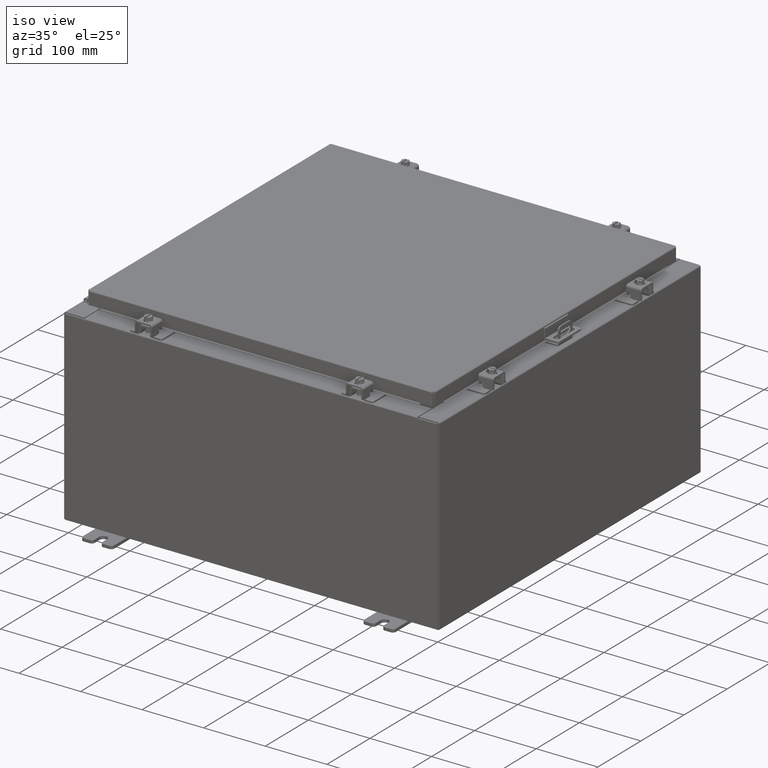
[diagram: clean part render]
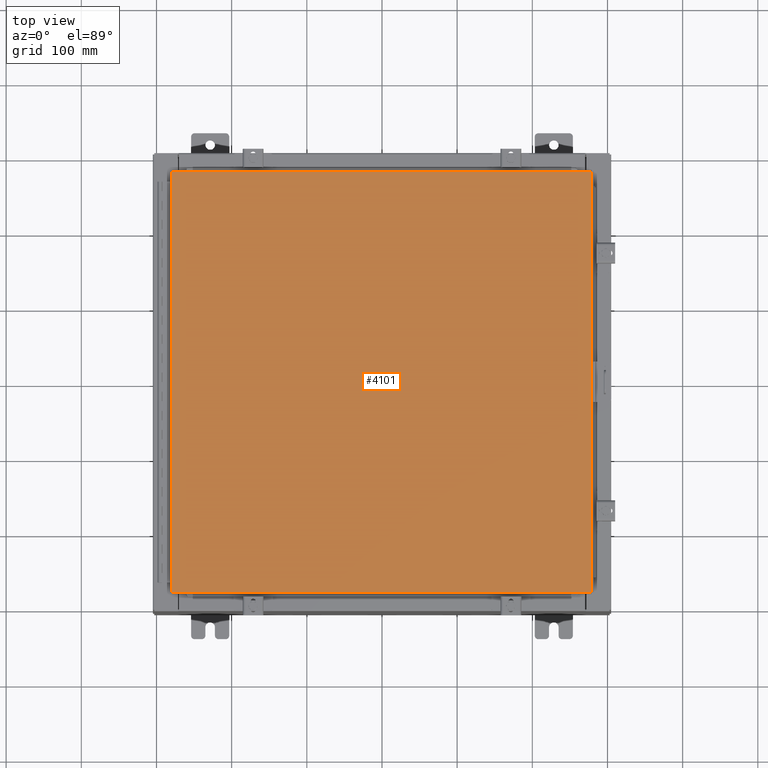
[diagram: tour spotlight — one face highlighted and labeled with its STEP entity id]
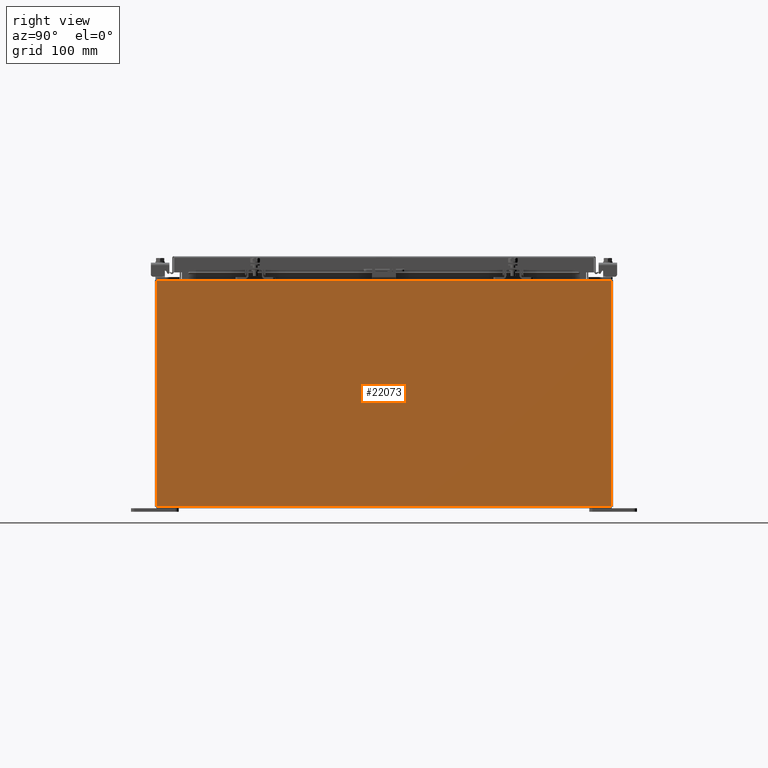
[diagram: tour spotlight — one face highlighted and labeled with its STEP entity id]
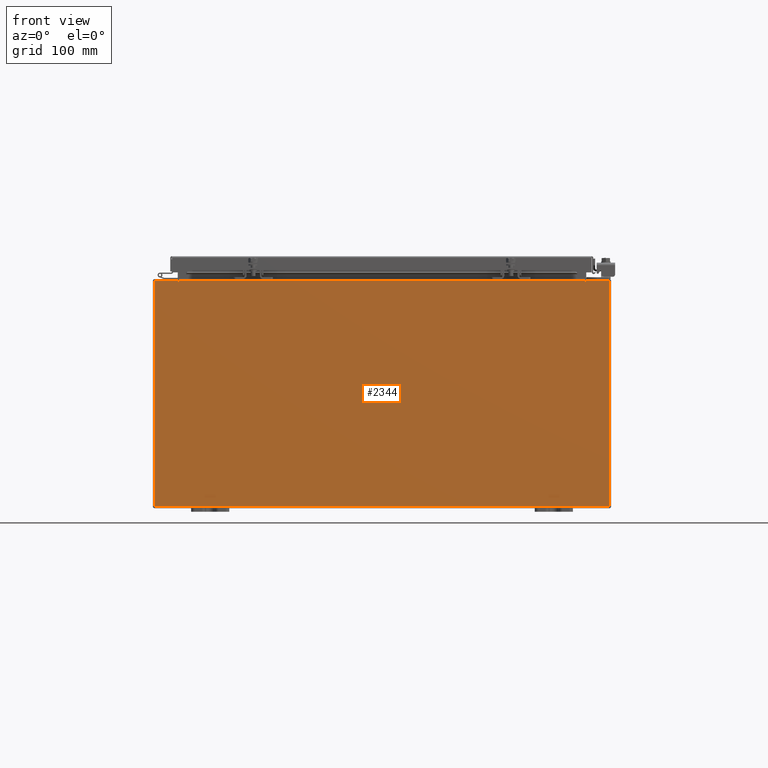
[diagram: tour spotlight — one face highlighted and labeled with its STEP entity id]
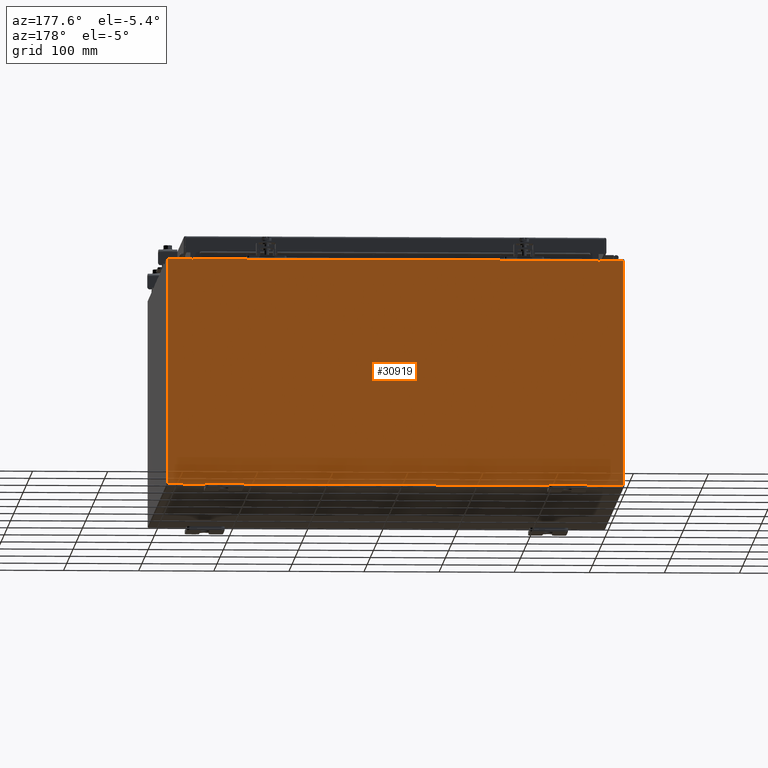
[diagram: tour spotlight — one face highlighted and labeled with its STEP entity id]
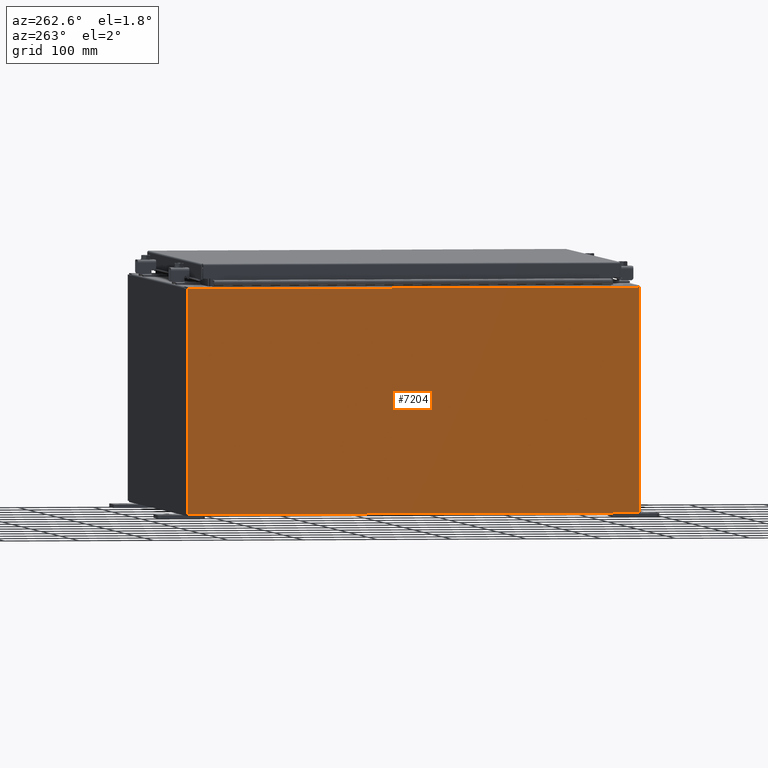
[diagram: tour spotlight — one face highlighted and labeled with its STEP entity id]
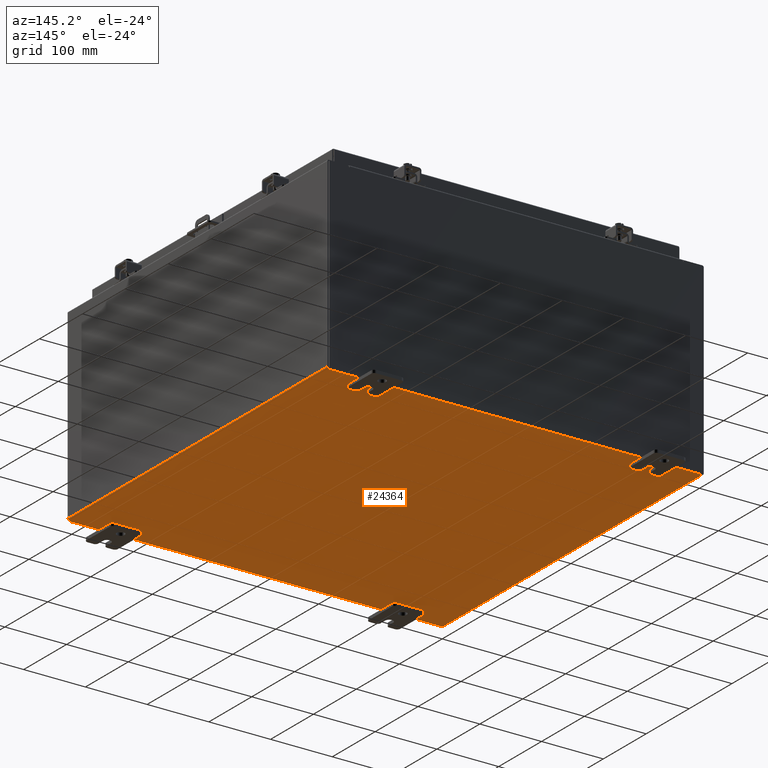
[diagram: tour spotlight — one face highlighted and labeled with its STEP entity id]
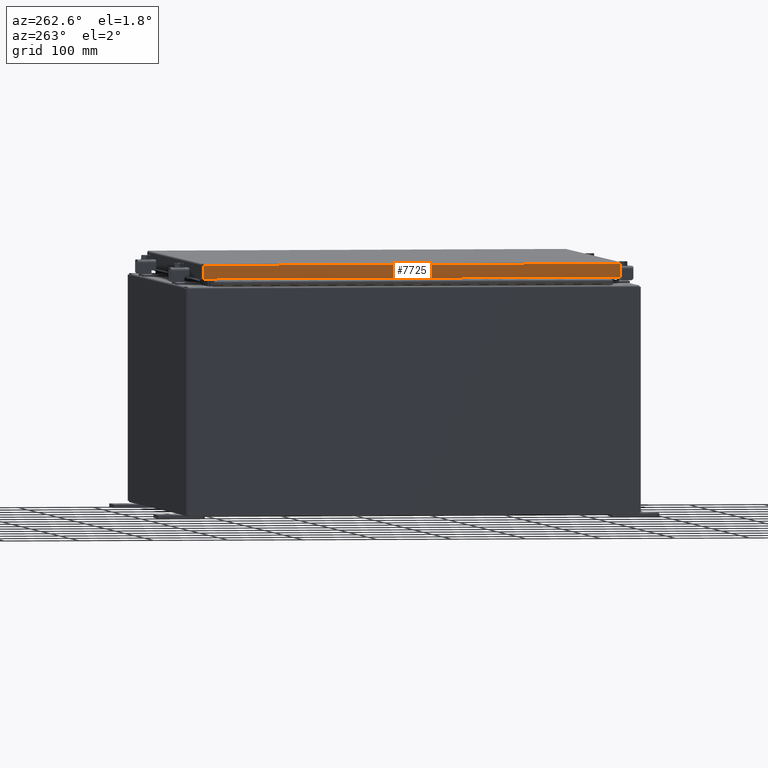
[diagram: tour spotlight — one face highlighted and labeled with its STEP entity id]
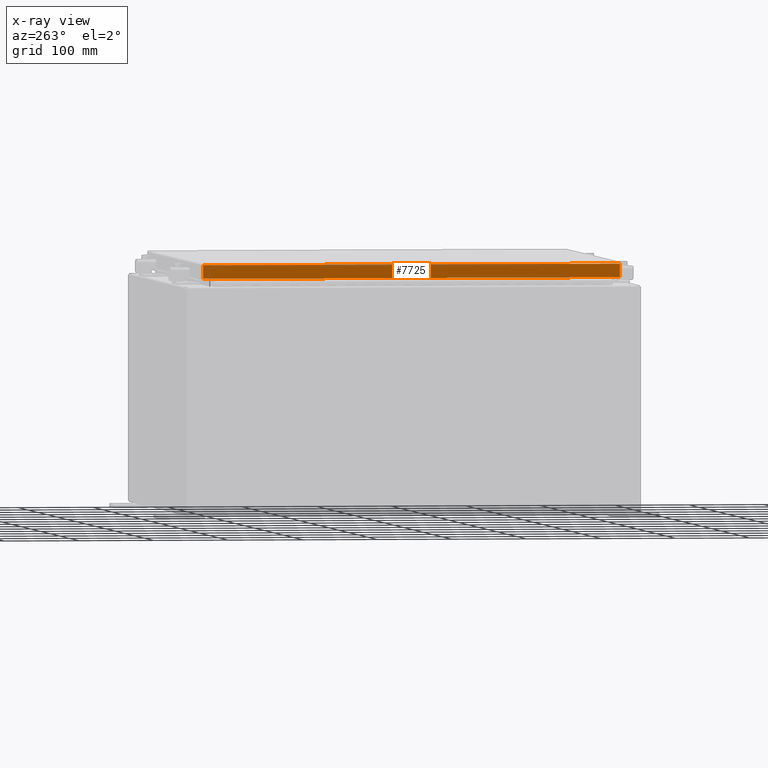
[diagram: x-ray of the same camera — body ghosted, this tour face saturated]
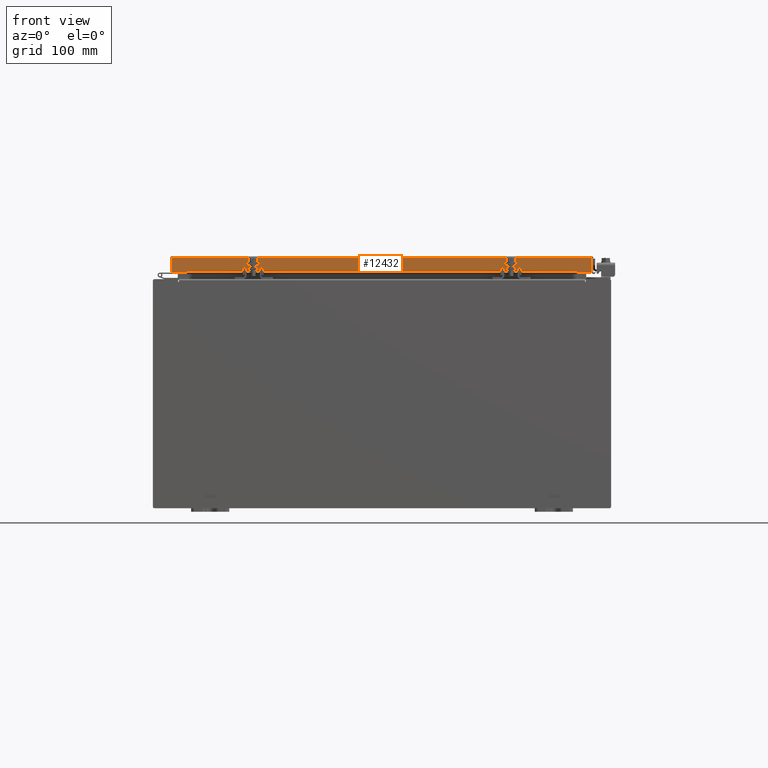
[diagram: tour spotlight — one face highlighted and labeled with its STEP entity id]
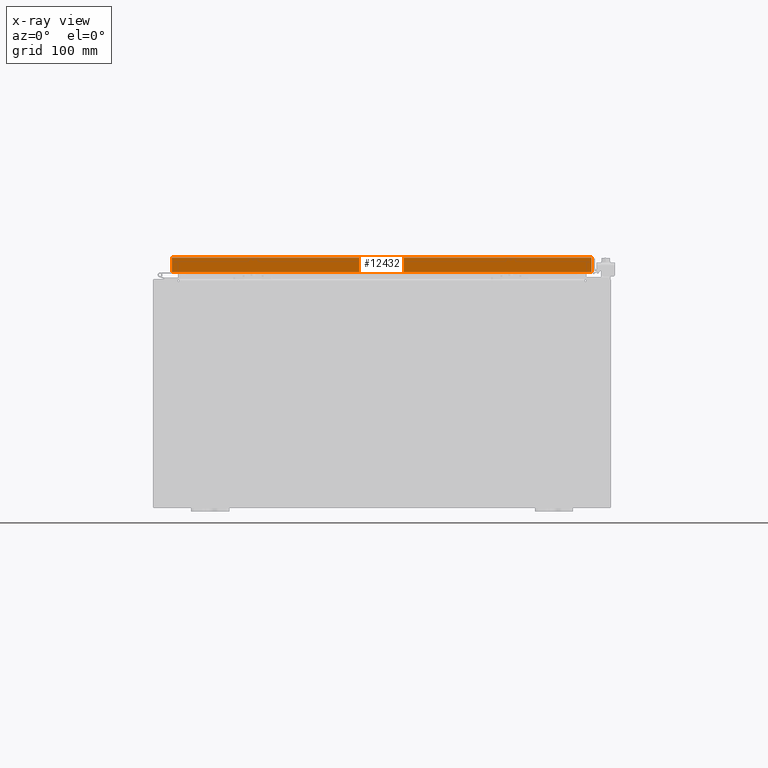
[diagram: x-ray of the same camera — body ghosted, this tour face saturated]
A machine part: a face-by-face anatomy tour. The part has 1709 B-rep faces; the first image is the clean iso view, then the 8 largest visible faces are spotlighted one at a time (largest first), each with its STEP entity span.

Face 1 — top view, entity #4101. In plain terms, the highlighted planar face has unit normal (0, 0, -1).
Definition (entity closure, byte-faithful):
#2749 = ORIENTED_EDGE ( 'NONE', *, *, #5644, .T. ) ;
#4101 = ADVANCED_FACE ( 'NONE', ( #16332 ), #6363, .F. ) ;
#5162 = CARTESIAN_POINT ( 'NONE',  ( 10.99029999999999800, 11.00629999999999600, -2.048885995248197400E-016 ) ) ;
#5644 = EDGE_CURVE ( 'NONE', #21532, #18365, #6133, .T. ) ;
#6133 = LINE ( 'NONE', #19002, #12801 ) ;
#6226 = AXIS2_PLACEMENT_3D ( 'NONE', #17024, #24381, #15376 ) ;
#6363 = PLANE ( 'NONE',  #6226 ) ;
#6663 = CARTESIAN_POINT ( 'NONE',  ( -10.99030000000000000, -11.00630000000000100, 8.878505979408856000E-016 ) ) ;
#8010 = DIRECTION ( 'NONE',  ( 0.0000000000000000000, -1.000000000000000000, 0.0000000000000000000 ) ) ;
#8567 = VECTOR ( 'NONE', #15763, 39.37007874015748100 ) ;
#8629 = ORIENTED_EDGE ( 'NONE', *, *, #20562, .T. ) ;
#11297 = LINE ( 'NONE', #5162, #17097 ) ;
#11789 = VERTEX_POINT ( 'NONE', #30143 ) ;
#11871 = VERTEX_POINT ( 'NONE', #28518 ) ;
#12105 = EDGE_CURVE ( 'NONE', #11789, #11871, #21863, .T. ) ;
#12801 = VECTOR ( 'NONE', #8010, 39.37007874015748100 ) ;
#15282 = VECTOR ( 'NONE', #15597, 39.37007874015748100 ) ;
#15376 = DIRECTION ( 'NONE',  ( -1.000000000000000000, 0.0000000000000000000, -0.0000000000000000000 ) ) ;
#15597 = DIRECTION ( 'NONE',  ( 1.000000000000000000, -0.0000000000000000000, -0.0000000000000000000 ) ) ;
#15763 = DIRECTION ( 'NONE',  ( 0.0000000000000000000, 1.000000000000000000, 0.0000000000000000000 ) ) ;
#16327 = ORIENTED_EDGE ( 'NONE', *, *, #28066, .T. ) ;
#16332 = FACE_OUTER_BOUND ( 'NONE', #16879, .T. ) ;
#16879 = EDGE_LOOP ( 'NONE', ( #8629, #31838, #16327, #2749 ) ) ;
#17024 = CARTESIAN_POINT ( 'NONE',  ( 0.0000000000000000000, 0.0000000000000000000, 0.0000000000000000000 ) ) ;
#17097 = VECTOR ( 'NONE', #20096, 39.37007874015748100 ) ;
#18365 = VERTEX_POINT ( 'NONE', #6663 ) ;
#19002 = CARTESIAN_POINT ( 'NONE',  ( -10.99030000000000500, 11.00629999999999600, -1.348849946871729900E-015 ) ) ;
#20096 = DIRECTION ( 'NONE',  ( -1.000000000000000000, -0.0000000000000000000, -0.0000000000000000000 ) ) ;
#20562 = EDGE_CURVE ( 'NONE', #18365, #11789, #21928, .T. ) ;
#20796 = CARTESIAN_POINT ( 'NONE',  ( 10.99029999999999600, -11.00630000000000100, -2.048885995248197400E-016 ) ) ;
#21532 = VERTEX_POINT ( 'NONE', #22006 ) ;
#21863 = LINE ( 'NONE', #20796, #8567 ) ;
#21928 = LINE ( 'NONE', #25412, #15282 ) ;
#22006 = CARTESIAN_POINT ( 'NONE',  ( -10.99030000000000500, 11.00629999999999600, -1.348849946871729900E-015 ) ) ;
#24381 = DIRECTION ( 'NONE',  ( 0.0000000000000000000, 0.0000000000000000000, -1.000000000000000000 ) ) ;
#25412 = CARTESIAN_POINT ( 'NONE',  ( -10.99030000000000000, -11.00630000000000100, 8.878505979408856000E-016 ) ) ;
#28066 = EDGE_CURVE ( 'NONE', #11871, #21532, #11297, .T. ) ;
#28518 = CARTESIAN_POINT ( 'NONE',  ( 10.99029999999999800, 11.00629999999999600, -2.048885995248197400E-016 ) ) ;
#30143 = CARTESIAN_POINT ( 'NONE',  ( 10.99029999999999600, -11.00630000000000100, -2.048885995248197400E-016 ) ) ;
#31838 = ORIENTED_EDGE ( 'NONE', *, *, #12105, .T. ) ;

Face 2 — right view, entity #22073. In plain terms, the highlighted planar face has unit normal (-1, 0, 0).
Definition (entity closure, byte-faithful):
#1579 = DIRECTION ( 'NONE',  ( -3.482016343714355500E-015, 0.0000000000000000000, -1.000000000000000000 ) ) ;
#4362 = VECTOR ( 'NONE', #10291, 39.37007874015748100 ) ;
#4567 = VERTEX_POINT ( 'NONE', #10391 ) ;
#4844 = DIRECTION ( 'NONE',  ( -1.000000000000000000, 0.0000000000000000000, 3.482016343714355100E-015 ) ) ;
#5555 = CARTESIAN_POINT ( 'NONE',  ( 11.99999999999999800, -11.92530000000000400, 0.01299999999999984700 ) ) ;
#6323 = VECTOR ( 'NONE', #1579, 39.37007874015748100 ) ;
#6795 = DIRECTION ( 'NONE',  ( -0.0000000000000000000, -1.000000000000000000, -0.0000000000000000000 ) ) ;
#8325 = LINE ( 'NONE', #13080, #26651 ) ;
#8662 = ORIENTED_EDGE ( 'NONE', *, *, #32009, .T. ) ;
#9198 = EDGE_CURVE ( 'NONE', #4567, #14258, #30127, .T. ) ;
#10291 = DIRECTION ( 'NONE',  ( -0.0000000000000000000, -1.000000000000000000, -0.0000000000000000000 ) ) ;
#10391 = CARTESIAN_POINT ( 'NONE',  ( 12.00000000000004100, 11.92529999999999600, 11.83760000000000000 ) ) ;
#11923 = ORIENTED_EDGE ( 'NONE', *, *, #9198, .T. ) ;
#12856 = VECTOR ( 'NONE', #31084, 39.37007874015748100 ) ;
#12996 = LINE ( 'NONE', #19102, #6323 ) ;
#13080 = CARTESIAN_POINT ( 'NONE',  ( 11.99999999999999800, -11.92530000000000400, 0.01299999999999984700 ) ) ;
#13785 = EDGE_CURVE ( 'NONE', #15747, #4567, #26056, .T. ) ;
#14258 = VERTEX_POINT ( 'NONE', #23986 ) ;
#14822 = CARTESIAN_POINT ( 'NONE',  ( 11.99999999999999800, 11.92529999999999600, 0.01299999999999984700 ) ) ;
#15747 = VERTEX_POINT ( 'NONE', #14822 ) ;
#15951 = ORIENTED_EDGE ( 'NONE', *, *, #19487, .F. ) ;
#18460 = VERTEX_POINT ( 'NONE', #5555 ) ;
#19102 = CARTESIAN_POINT ( 'NONE',  ( 11.99999999999999800, -11.92530000000000400, -4.204500978058384000E-014 ) ) ;
#19475 = ORIENTED_EDGE ( 'NONE', *, *, #13785, .T. ) ;
#19487 = EDGE_CURVE ( 'NONE', #15747, #18460, #8325, .T. ) ;
#19774 = CARTESIAN_POINT ( 'NONE',  ( 11.99999999999999800, 0.0000000000000000000, -4.204500978058384000E-014 ) ) ;
#21159 = EDGE_LOOP ( 'NONE', ( #11923, #8662, #15951, #19475 ) ) ;
#22073 = ADVANCED_FACE ( 'NONE', ( #29610 ), #24688, .F. ) ;
#22309 = DIRECTION ( 'NONE',  ( 3.482016343714355100E-015, 0.0000000000000000000, 1.000000000000000000 ) ) ;
#23986 = CARTESIAN_POINT ( 'NONE',  ( 12.00000000000004100, -11.92530000000000400, 11.83760000000000000 ) ) ;
#24688 = PLANE ( 'NONE',  #32336 ) ;
#25271 = CARTESIAN_POINT ( 'NONE',  ( 12.00000000000004100, 11.92529999999999800, 11.83760000000000000 ) ) ;
#26056 = LINE ( 'NONE', #29591, #12856 ) ;
#26651 = VECTOR ( 'NONE', #6795, 39.37007874015748100 ) ;
#29591 = CARTESIAN_POINT ( 'NONE',  ( 11.99999999999999800, 11.92529999999999800, -3.985953138565242700E-014 ) ) ;
#29610 = FACE_OUTER_BOUND ( 'NONE', #21159, .T. ) ;
#30127 = LINE ( 'NONE', #25271, #4362 ) ;
#31084 = DIRECTION ( 'NONE',  ( 3.482016343714355500E-015, -1.832640180902292400E-016, 1.000000000000000000 ) ) ;
#32009 = EDGE_CURVE ( 'NONE', #14258, #18460, #12996, .T. ) ;
#32336 = AXIS2_PLACEMENT_3D ( 'NONE', #19774, #4844, #22309 ) ;

Face 3 — front view, entity #2344. In plain terms, the highlighted planar face has unit normal (-0, 1, -0).
Definition (entity closure, byte-faithful):
#123 = EDGE_CURVE ( 'NONE', #12515, #16957, #15056, .T. ) ;
#334 = LINE ( 'NONE', #498, #26151 ) ;
#468 = EDGE_CURVE ( 'NONE', #3022, #19372, #25549, .T. ) ;
#498 = CARTESIAN_POINT ( 'NONE',  ( 10.63720000000000400, 0.0000000000000000000, 0.0000000000000000000 ) ) ;
#983 = CARTESIAN_POINT ( 'NONE',  ( 10.63720000000000400, 0.0000000000000000000, 5.912300000000001000 ) ) ;
#1003 = LINE ( 'NONE', #17202, #19418 ) ;
#1527 = VERTEX_POINT ( 'NONE', #8204 ) ;
#1715 = PLANE ( 'NONE',  #22298 ) ;
#2262 = DIRECTION ( 'NONE',  ( 0.0000000000000000000, 0.0000000000000000000, -1.000000000000000000 ) ) ;
#2344 = ADVANCED_FACE ( 'NONE', ( #21150 ), #1715, .F. ) ;
#2394 = VERTEX_POINT ( 'NONE', #26447 ) ;
#2830 = CARTESIAN_POINT ( 'NONE',  ( -11.92530000000000000, 0.0000000000000000000, 5.925300000000000000 ) ) ;
#2891 = EDGE_CURVE ( 'NONE', #19372, #16957, #334, .T. ) ;
#3022 = VERTEX_POINT ( 'NONE', #13255 ) ;
#3382 = VECTOR ( 'NONE', #27436, 39.37007874015748100 ) ;
#3418 = VERTEX_POINT ( 'NONE', #12728 ) ;
#3546 = DIRECTION ( 'NONE',  ( -1.000000000000000000, -0.0000000000000000000, -0.0000000000000000000 ) ) ;
#3864 = VECTOR ( 'NONE', #11625, 39.37007874015748100 ) ;
#4028 = VERTEX_POINT ( 'NONE', #27704 ) ;
#4132 = EDGE_CURVE ( 'NONE', #3418, #23261, #22242, .T. ) ;
#4544 = CARTESIAN_POINT ( 'NONE',  ( -11.92530000000000000, 0.0000000000000000000, 5.925300000000000000 ) ) ;
#4637 = DIRECTION ( 'NONE',  ( 0.0000000000000000000, 0.0000000000000000000, -1.000000000000000000 ) ) ;
#4768 = DIRECTION ( 'NONE',  ( 0.0000000000000000000, 0.0000000000000000000, -1.000000000000000000 ) ) ;
#4825 = ORIENTED_EDGE ( 'NONE', *, *, #22071, .T. ) ;
#4891 = EDGE_CURVE ( 'NONE', #18852, #2394, #25660, .T. ) ;
#5991 = ORIENTED_EDGE ( 'NONE', *, *, #2891, .F. ) ;
#6051 = AXIS2_PLACEMENT_3D ( 'NONE', #16630, #32163, #4637 ) ;
#6829 = EDGE_CURVE ( 'NONE', #4028, #12113, #19711, .T. ) ;
#8204 = CARTESIAN_POINT ( 'NONE',  ( 10.67455000000000200, 0.0000000000000000000, 5.925300000000001800 ) ) ;
#8283 = EDGE_CURVE ( 'NONE', #22448, #4028, #24677, .T. ) ;
#8401 = ORIENTED_EDGE ( 'NONE', *, *, #29397, .F. ) ;
#8433 = DIRECTION ( 'NONE',  ( 0.0000000000000000000, 0.0000000000000000000, -1.000000000000000000 ) ) ;
#8492 = DIRECTION ( 'NONE',  ( -0.0000000000000000000, 1.000000000000000000, -0.0000000000000000000 ) ) ;
#8524 = CARTESIAN_POINT ( 'NONE',  ( 10.65587500000000200, 0.0000000000000000000, 5.874950000000001000 ) ) ;
#8964 = CARTESIAN_POINT ( 'NONE',  ( -11.92530000000000000, 0.0000000000000000000, -5.925299999999999100 ) ) ;
#9557 = DIRECTION ( 'NONE',  ( -0.0000000000000000000, -0.0000000000000000000, 1.000000000000000000 ) ) ;
#10520 = VECTOR ( 'NONE', #17241, 39.37007874015748100 ) ;
#11206 = EDGE_LOOP ( 'NONE', ( #8401, #24494, #29262, #20943, #5991, #25058, #17583, #4825, #11525, #11651, #16362, #11444 ) ) ;
#11436 = VECTOR ( 'NONE', #4768, 39.37007874015748100 ) ;
#11444 = ORIENTED_EDGE ( 'NONE', *, *, #4132, .T. ) ;
#11480 = EDGE_CURVE ( 'NONE', #1527, #3022, #18374, .T. ) ;
#11525 = ORIENTED_EDGE ( 'NONE', *, *, #8283, .T. ) ;
#11625 = DIRECTION ( 'NONE',  ( 1.000000000000000000, 0.0000000000000000000, 4.581600452255731000E-017 ) ) ;
#11651 = ORIENTED_EDGE ( 'NONE', *, *, #6829, .T. ) ;
#12113 = VERTEX_POINT ( 'NONE', #8964 ) ;
#12515 = VERTEX_POINT ( 'NONE', #22060 ) ;
#12728 = CARTESIAN_POINT ( 'NONE',  ( -11.92530000000000000, 0.0000000000000000000, 5.925300000000000000 ) ) ;
#13255 = CARTESIAN_POINT ( 'NONE',  ( 10.67455000000000200, 0.0000000000000000000, 5.874950000000001000 ) ) ;
#13521 = CARTESIAN_POINT ( 'NONE',  ( -10.67455000000000200, 0.0000000000000000000, 5.925300000000000000 ) ) ;
#14546 = CARTESIAN_POINT ( 'NONE',  ( 10.63720000000000400, 0.0000000000000000000, 5.874950000000001000 ) ) ;
#14756 = CARTESIAN_POINT ( 'NONE',  ( -11.92530000000000000, 0.0000000000000000000, 5.925300000000000000 ) ) ;
#15056 = LINE ( 'NONE', #25312, #27535 ) ;
#15311 = AXIS2_PLACEMENT_3D ( 'NONE', #8524, #8492, #8433 ) ;
#16277 = CARTESIAN_POINT ( 'NONE',  ( -10.63720000000000400, -0.0000000000000000000, 5.874950000000001000 ) ) ;
#16362 = ORIENTED_EDGE ( 'NONE', *, *, #21542, .T. ) ;
#16630 = CARTESIAN_POINT ( 'NONE',  ( -10.65587500000000200, 0.0000000000000000000, 5.874950000000001000 ) ) ;
#16957 = VERTEX_POINT ( 'NONE', #983 ) ;
#17202 = CARTESIAN_POINT ( 'NONE',  ( -10.63720000000000400, -0.0000000000000000000, 0.0000000000000000000 ) ) ;
#17241 = DIRECTION ( 'NONE',  ( 1.000000000000000000, 0.0000000000000000000, 4.581600452255731000E-017 ) ) ;
#17583 = ORIENTED_EDGE ( 'NONE', *, *, #11480, .F. ) ;
#18374 = LINE ( 'NONE', #25436, #30875 ) ;
#18611 = CARTESIAN_POINT ( 'NONE',  ( -11.92530000000000000, 0.0000000000000000000, -5.925299999999999100 ) ) ;
#18852 = VERTEX_POINT ( 'NONE', #16277 ) ;
#19372 = VERTEX_POINT ( 'NONE', #14546 ) ;
#19418 = VECTOR ( 'NONE', #2262, 39.37007874015748100 ) ;
#19711 = LINE ( 'NONE', #18611, #31400 ) ;
#20943 = ORIENTED_EDGE ( 'NONE', *, *, #123, .T. ) ;
#21150 = FACE_OUTER_BOUND ( 'NONE', #11206, .T. ) ;
#21542 = EDGE_CURVE ( 'NONE', #12113, #3418, #32019, .T. ) ;
#22060 = CARTESIAN_POINT ( 'NONE',  ( -10.63720000000000400, -1.707404996040164500E-016, 5.912300000000001000 ) ) ;
#22071 = EDGE_CURVE ( 'NONE', #1527, #22448, #30393, .T. ) ;
#22242 = LINE ( 'NONE', #2830, #3864 ) ;
#22298 = AXIS2_PLACEMENT_3D ( 'NONE', #26348, #25711, #25754 ) ;
#22448 = VERTEX_POINT ( 'NONE', #25411 ) ;
#22508 = CARTESIAN_POINT ( 'NONE',  ( 11.92530000000000000, 0.0000000000000000000, 5.925300000000001800 ) ) ;
#22918 = EDGE_CURVE ( 'NONE', #12515, #18852, #1003, .T. ) ;
#23261 = VERTEX_POINT ( 'NONE', #13521 ) ;
#24494 = ORIENTED_EDGE ( 'NONE', *, *, #4891, .F. ) ;
#24677 = LINE ( 'NONE', #22508, #11436 ) ;
#24921 = CARTESIAN_POINT ( 'NONE',  ( -10.67455000000000200, -0.0000000000000000000, 0.0000000000000000000 ) ) ;
#25058 = ORIENTED_EDGE ( 'NONE', *, *, #468, .F. ) ;
#25312 = CARTESIAN_POINT ( 'NONE',  ( -10.63720000000000400, -1.707404996040164500E-016, 5.912300000000001000 ) ) ;
#25349 = VECTOR ( 'NONE', #9557, 39.37007874015748100 ) ;
#25411 = CARTESIAN_POINT ( 'NONE',  ( 11.92530000000000000, 0.0000000000000000000, 5.925300000000001800 ) ) ;
#25436 = CARTESIAN_POINT ( 'NONE',  ( 10.67455000000000200, 0.0000000000000000000, 0.0000000000000000000 ) ) ;
#25549 = CIRCLE ( 'NONE', #15311, 0.01867499999999949400 ) ;
#25582 = DIRECTION ( 'NONE',  ( 0.0000000000000000000, 0.0000000000000000000, -1.000000000000000000 ) ) ;
#25660 = CIRCLE ( 'NONE', #6051, 0.01867499999999949400 ) ;
#25711 = DIRECTION ( 'NONE',  ( 0.0000000000000000000, -1.000000000000000000, 0.0000000000000000000 ) ) ;
#25754 = DIRECTION ( 'NONE',  ( 0.0000000000000000000, -0.0000000000000000000, -1.000000000000000000 ) ) ;
#26151 = VECTOR ( 'NONE', #26345, 39.37007874015748100 ) ;
#26345 = DIRECTION ( 'NONE',  ( 0.0000000000000000000, 0.0000000000000000000, 1.000000000000000000 ) ) ;
#26348 = CARTESIAN_POINT ( 'NONE',  ( 0.0000000000000000000, 0.0000000000000000000, 0.0000000000000000000 ) ) ;
#26447 = CARTESIAN_POINT ( 'NONE',  ( -10.67455000000000200, 0.0000000000000000000, 5.874950000000001000 ) ) ;
#27436 = DIRECTION ( 'NONE',  ( 0.0000000000000000000, 0.0000000000000000000, 1.000000000000000000 ) ) ;
#27535 = VECTOR ( 'NONE', #28996, 39.37007874015748100 ) ;
#27704 = CARTESIAN_POINT ( 'NONE',  ( 11.92530000000000000, 0.0000000000000000000, -5.925299999999999100 ) ) ;
#28996 = DIRECTION ( 'NONE',  ( 1.000000000000000000, 0.0000000000000000000, 0.0000000000000000000 ) ) ;
#29262 = ORIENTED_EDGE ( 'NONE', *, *, #22918, .F. ) ;
#29397 = EDGE_CURVE ( 'NONE', #2394, #23261, #29933, .T. ) ;
#29933 = LINE ( 'NONE', #24921, #3382 ) ;
#30393 = LINE ( 'NONE', #14756, #10520 ) ;
#30875 = VECTOR ( 'NONE', #25582, 39.37007874015748100 ) ;
#31400 = VECTOR ( 'NONE', #3546, 39.37007874015748100 ) ;
#32019 = LINE ( 'NONE', #4544, #25349 ) ;
#32163 = DIRECTION ( 'NONE',  ( -0.0000000000000000000, 1.000000000000000000, -0.0000000000000000000 ) ) ;

Face 4 — auxiliary view, entity #30919. In plain terms, the highlighted planar face has unit normal (0, -1, 0).
Definition (entity closure, byte-faithful):
#755 = EDGE_CURVE ( 'NONE', #25137, #796, #12708, .T. ) ;
#796 = VERTEX_POINT ( 'NONE', #9657 ) ;
#1100 = LINE ( 'NONE', #10075, #20293 ) ;
#1504 = ORIENTED_EDGE ( 'NONE', *, *, #3366, .T. ) ;
#1887 = DIRECTION ( 'NONE',  ( -0.0000000000000000000, 1.000000000000000000, -0.0000000000000000000 ) ) ;
#2815 = CARTESIAN_POINT ( 'NONE',  ( 10.63720000000000400, 0.0000000000000000000, 0.0000000000000000000 ) ) ;
#3366 = EDGE_CURVE ( 'NONE', #27264, #25137, #1100, .T. ) ;
#4007 = DIRECTION ( 'NONE',  ( 0.0000000000000000000, -1.000000000000000000, 0.0000000000000000000 ) ) ;
#4224 = LINE ( 'NONE', #11071, #15926 ) ;
#4304 = VERTEX_POINT ( 'NONE', #9774 ) ;
#5987 = ORIENTED_EDGE ( 'NONE', *, *, #14355, .T. ) ;
#6516 = DIRECTION ( 'NONE',  ( -0.0000000000000000000, 1.000000000000000000, -0.0000000000000000000 ) ) ;
#6872 = VECTOR ( 'NONE', #17228, 39.37007874015748100 ) ;
#7046 = LINE ( 'NONE', #2815, #12945 ) ;
#7585 = VERTEX_POINT ( 'NONE', #11070 ) ;
#7801 = CARTESIAN_POINT ( 'NONE',  ( 10.67455000000000200, 0.0000000000000000000, 5.874950000000001000 ) ) ;
#7814 = ORIENTED_EDGE ( 'NONE', *, *, #29956, .F. ) ;
#8260 = CARTESIAN_POINT ( 'NONE',  ( 10.63720000000000400, 0.0000000000000000000, 5.912300000000001000 ) ) ;
#8890 = CARTESIAN_POINT ( 'NONE',  ( 0.0000000000000000000, 0.0000000000000000000, 0.0000000000000000000 ) ) ;
#9019 = CIRCLE ( 'NONE', #10265, 0.01867499999999949400 ) ;
#9060 = DIRECTION ( 'NONE',  ( -1.000000000000000000, -0.0000000000000000000, -0.0000000000000000000 ) ) ;
#9657 = CARTESIAN_POINT ( 'NONE',  ( -11.92530000000000000, 0.0000000000000000000, -5.925299999999999100 ) ) ;
#9774 = CARTESIAN_POINT ( 'NONE',  ( 10.63720000000000400, 0.0000000000000000000, 5.874950000000001000 ) ) ;
#9870 = EDGE_CURVE ( 'NONE', #7585, #21179, #19552, .T. ) ;
#10075 = CARTESIAN_POINT ( 'NONE',  ( 11.92530000000000000, 0.0000000000000000000, 5.925300000000001800 ) ) ;
#10265 = AXIS2_PLACEMENT_3D ( 'NONE', #16865, #1887, #19386 ) ;
#10526 = CARTESIAN_POINT ( 'NONE',  ( -11.92530000000000000, 0.0000000000000000000, 5.925300000000000000 ) ) ;
#10853 = CARTESIAN_POINT ( 'NONE',  ( 10.67455000000000200, 0.0000000000000000000, 0.0000000000000000000 ) ) ;
#11041 = ORIENTED_EDGE ( 'NONE', *, *, #22320, .T. ) ;
#11070 = CARTESIAN_POINT ( 'NONE',  ( -10.63720000000000400, -1.707404996040164500E-016, 5.912300000000001000 ) ) ;
#11071 = CARTESIAN_POINT ( 'NONE',  ( -11.92530000000000000, 0.0000000000000000000, 5.925300000000000000 ) ) ;
#11078 = CARTESIAN_POINT ( 'NONE',  ( 10.67455000000000200, 0.0000000000000000000, 5.925300000000001800 ) ) ;
#11147 = EDGE_CURVE ( 'NONE', #11405, #23645, #32367, .T. ) ;
#11300 = ORIENTED_EDGE ( 'NONE', *, *, #11147, .F. ) ;
#11302 = DIRECTION ( 'NONE',  ( 0.0000000000000000000, 0.0000000000000000000, 1.000000000000000000 ) ) ;
#11405 = VERTEX_POINT ( 'NONE', #11078 ) ;
#11706 = VECTOR ( 'NONE', #29329, 39.37007874015748100 ) ;
#11732 = CARTESIAN_POINT ( 'NONE',  ( -10.67455000000000200, 0.0000000000000000000, 5.874950000000001000 ) ) ;
#11930 = VECTOR ( 'NONE', #9060, 39.37007874015748100 ) ;
#12018 = CARTESIAN_POINT ( 'NONE',  ( -10.67455000000000200, 0.0000000000000000000, 5.925300000000000000 ) ) ;
#12361 = ORIENTED_EDGE ( 'NONE', *, *, #25896, .F. ) ;
#12562 = AXIS2_PLACEMENT_3D ( 'NONE', #25369, #6516, #22450 ) ;
#12708 = LINE ( 'NONE', #15164, #11930 ) ;
#12945 = VECTOR ( 'NONE', #22810, 39.37007874015748100 ) ;
#13930 = PLANE ( 'NONE',  #30398 ) ;
#14189 = DIRECTION ( 'NONE',  ( -0.0000000000000000000, -0.0000000000000000000, 1.000000000000000000 ) ) ;
#14334 = CARTESIAN_POINT ( 'NONE',  ( -11.92530000000000000, 0.0000000000000000000, 5.925300000000000000 ) ) ;
#14355 = EDGE_CURVE ( 'NONE', #796, #30664, #23721, .T. ) ;
#14825 = ORIENTED_EDGE ( 'NONE', *, *, #9870, .T. ) ;
#15164 = CARTESIAN_POINT ( 'NONE',  ( -11.92530000000000000, 0.0000000000000000000, -5.925299999999999100 ) ) ;
#15926 = VECTOR ( 'NONE', #16032, 39.37007874015748100 ) ;
#16032 = DIRECTION ( 'NONE',  ( 1.000000000000000000, 0.0000000000000000000, 4.581600452255731000E-017 ) ) ;
#16402 = VECTOR ( 'NONE', #11302, 39.37007874015748100 ) ;
#16448 = EDGE_CURVE ( 'NONE', #29341, #16983, #30214, .T. ) ;
#16806 = DIRECTION ( 'NONE',  ( 0.0000000000000000000, 0.0000000000000000000, -1.000000000000000000 ) ) ;
#16865 = CARTESIAN_POINT ( 'NONE',  ( 10.65587500000000200, 0.0000000000000000000, 5.874950000000001000 ) ) ;
#16983 = VERTEX_POINT ( 'NONE', #11732 ) ;
#17228 = DIRECTION ( 'NONE',  ( 0.0000000000000000000, 0.0000000000000000000, -1.000000000000000000 ) ) ;
#17441 = VERTEX_POINT ( 'NONE', #12018 ) ;
#17444 = EDGE_LOOP ( 'NONE', ( #12361, #27274, #7814, #14825, #17638, #31916, #11300, #11041, #1504, #27036, #5987, #29091 ) ) ;
#17638 = ORIENTED_EDGE ( 'NONE', *, *, #21096, .F. ) ;
#19066 = VECTOR ( 'NONE', #27952, 39.37007874015748100 ) ;
#19386 = DIRECTION ( 'NONE',  ( 0.0000000000000000000, 0.0000000000000000000, -1.000000000000000000 ) ) ;
#19552 = LINE ( 'NONE', #22491, #31257 ) ;
#19597 = CARTESIAN_POINT ( 'NONE',  ( 11.92530000000000000, 0.0000000000000000000, 5.925300000000001800 ) ) ;
#19764 = CARTESIAN_POINT ( 'NONE',  ( -10.63720000000000400, -0.0000000000000000000, 0.0000000000000000000 ) ) ;
#20125 = LINE ( 'NONE', #19764, #6872 ) ;
#20293 = VECTOR ( 'NONE', #16806, 39.37007874015748100 ) ;
#21096 = EDGE_CURVE ( 'NONE', #4304, #21179, #7046, .T. ) ;
#21179 = VERTEX_POINT ( 'NONE', #8260 ) ;
#21458 = DIRECTION ( 'NONE',  ( 0.0000000000000000000, -0.0000000000000000000, -1.000000000000000000 ) ) ;
#22218 = EDGE_CURVE ( 'NONE', #30664, #17441, #25687, .T. ) ;
#22297 = LINE ( 'NONE', #31228, #16402 ) ;
#22320 = EDGE_CURVE ( 'NONE', #11405, #27264, #4224, .T. ) ;
#22450 = DIRECTION ( 'NONE',  ( 0.0000000000000000000, 0.0000000000000000000, -1.000000000000000000 ) ) ;
#22491 = CARTESIAN_POINT ( 'NONE',  ( -10.63720000000000400, -1.707404996040164500E-016, 5.912300000000001000 ) ) ;
#22810 = DIRECTION ( 'NONE',  ( 0.0000000000000000000, 0.0000000000000000000, 1.000000000000000000 ) ) ;
#23645 = VERTEX_POINT ( 'NONE', #7801 ) ;
#23721 = LINE ( 'NONE', #14334, #31928 ) ;
#24093 = CARTESIAN_POINT ( 'NONE',  ( 11.92530000000000000, 0.0000000000000000000, -5.925299999999999100 ) ) ;
#25137 = VERTEX_POINT ( 'NONE', #24093 ) ;
#25332 = EDGE_CURVE ( 'NONE', #23645, #4304, #9019, .T. ) ;
#25369 = CARTESIAN_POINT ( 'NONE',  ( -10.65587500000000200, 0.0000000000000000000, 5.874950000000001000 ) ) ;
#25687 = LINE ( 'NONE', #10526, #19066 ) ;
#25896 = EDGE_CURVE ( 'NONE', #16983, #17441, #22297, .T. ) ;
#26630 = DIRECTION ( 'NONE',  ( 1.000000000000000000, 0.0000000000000000000, 0.0000000000000000000 ) ) ;
#27036 = ORIENTED_EDGE ( 'NONE', *, *, #755, .T. ) ;
#27264 = VERTEX_POINT ( 'NONE', #19597 ) ;
#27274 = ORIENTED_EDGE ( 'NONE', *, *, #16448, .F. ) ;
#27326 = CARTESIAN_POINT ( 'NONE',  ( -10.63720000000000400, -0.0000000000000000000, 5.874950000000001000 ) ) ;
#27485 = FACE_OUTER_BOUND ( 'NONE', #17444, .T. ) ;
#27952 = DIRECTION ( 'NONE',  ( 1.000000000000000000, 0.0000000000000000000, 4.581600452255731000E-017 ) ) ;
#29091 = ORIENTED_EDGE ( 'NONE', *, *, #22218, .T. ) ;
#29329 = DIRECTION ( 'NONE',  ( 0.0000000000000000000, 0.0000000000000000000, -1.000000000000000000 ) ) ;
#29341 = VERTEX_POINT ( 'NONE', #27326 ) ;
#29956 = EDGE_CURVE ( 'NONE', #7585, #29341, #20125, .T. ) ;
#30214 = CIRCLE ( 'NONE', #12562, 0.01867499999999949400 ) ;
#30398 = AXIS2_PLACEMENT_3D ( 'NONE', #8890, #4007, #21458 ) ;
#30664 = VERTEX_POINT ( 'NONE', #32288 ) ;
#30919 = ADVANCED_FACE ( 'NONE', ( #27485 ), #13930, .F. ) ;
#31228 = CARTESIAN_POINT ( 'NONE',  ( -10.67455000000000200, -0.0000000000000000000, 0.0000000000000000000 ) ) ;
#31257 = VECTOR ( 'NONE', #26630, 39.37007874015748100 ) ;
#31916 = ORIENTED_EDGE ( 'NONE', *, *, #25332, .F. ) ;
#31928 = VECTOR ( 'NONE', #14189, 39.37007874015748100 ) ;
#32288 = CARTESIAN_POINT ( 'NONE',  ( -11.92530000000000000, 0.0000000000000000000, 5.925300000000000000 ) ) ;
#32367 = LINE ( 'NONE', #10853, #11706 ) ;

Face 5 — auxiliary view, entity #7204. In plain terms, the highlighted planar face has unit normal (1, 0, 0).
Definition (entity closure, byte-faithful):
#957 = EDGE_LOOP ( 'NONE', ( #19846, #8976, #32433, #23149 ) ) ;
#2207 = EDGE_CURVE ( 'NONE', #7791, #15093, #12599, .T. ) ;
#2571 = VECTOR ( 'NONE', #17034, 39.37007874015748100 ) ;
#4678 = LINE ( 'NONE', #17270, #12117 ) ;
#4955 = CARTESIAN_POINT ( 'NONE',  ( -12.00000000000004400, -11.92530000000000400, 11.83760000000000000 ) ) ;
#5694 = CARTESIAN_POINT ( 'NONE',  ( -12.00000000000000400, 11.92529999999999800, 0.01299999999999984700 ) ) ;
#7010 = CARTESIAN_POINT ( 'NONE',  ( -12.00000000000000400, -11.92530000000000400, -4.204500978058385200E-014 ) ) ;
#7204 = ADVANCED_FACE ( 'NONE', ( #28638 ), #22013, .F. ) ;
#7791 = VERTEX_POINT ( 'NONE', #12900 ) ;
#8976 = ORIENTED_EDGE ( 'NONE', *, *, #2207, .T. ) ;
#11836 = VECTOR ( 'NONE', #23804, 39.37007874015748100 ) ;
#12117 = VECTOR ( 'NONE', #27324, 39.37007874015748100 ) ;
#12599 = LINE ( 'NONE', #23388, #11836 ) ;
#12900 = CARTESIAN_POINT ( 'NONE',  ( -12.00000000000004400, 11.92529999999999800, 11.83760000000000000 ) ) ;
#13597 = VERTEX_POINT ( 'NONE', #29187 ) ;
#15035 = EDGE_CURVE ( 'NONE', #13597, #7791, #26363, .T. ) ;
#15093 = VERTEX_POINT ( 'NONE', #5694 ) ;
#16615 = LINE ( 'NONE', #7010, #2571 ) ;
#17034 = DIRECTION ( 'NONE',  ( -3.482016343714355500E-015, 0.0000000000000000000, 1.000000000000000000 ) ) ;
#17163 = CARTESIAN_POINT ( 'NONE',  ( -12.00000000000000400, -11.92530000000000000, 0.01299999999999984700 ) ) ;
#17270 = CARTESIAN_POINT ( 'NONE',  ( -12.00000000000000400, 11.92529999999999800, 0.01299999999999984700 ) ) ;
#19846 = ORIENTED_EDGE ( 'NONE', *, *, #15035, .T. ) ;
#21352 = DIRECTION ( 'NONE',  ( 3.482016343714355100E-015, 0.0000000000000000000, -1.000000000000000000 ) ) ;
#21596 = EDGE_CURVE ( 'NONE', #23510, #15093, #4678, .T. ) ;
#22013 = PLANE ( 'NONE',  #26116 ) ;
#23149 = ORIENTED_EDGE ( 'NONE', *, *, #29908, .T. ) ;
#23388 = CARTESIAN_POINT ( 'NONE',  ( -12.00000000000000400, 11.92529999999999800, -4.204500978058385200E-014 ) ) ;
#23510 = VERTEX_POINT ( 'NONE', #17163 ) ;
#23804 = DIRECTION ( 'NONE',  ( 3.482016343714355500E-015, 0.0000000000000000000, -1.000000000000000000 ) ) ;
#25281 = CARTESIAN_POINT ( 'NONE',  ( -12.00000000000000400, 0.0000000000000000000, -4.204500978058385200E-014 ) ) ;
#25387 = DIRECTION ( 'NONE',  ( 1.000000000000000000, 0.0000000000000000000, 3.482016343714355100E-015 ) ) ;
#26116 = AXIS2_PLACEMENT_3D ( 'NONE', #25281, #25387, #21352 ) ;
#26363 = LINE ( 'NONE', #4955, #30695 ) ;
#27324 = DIRECTION ( 'NONE',  ( -0.0000000000000000000, 1.000000000000000000, -0.0000000000000000000 ) ) ;
#27628 = DIRECTION ( 'NONE',  ( 0.0000000000000000000, 1.000000000000000000, 0.0000000000000000000 ) ) ;
#28638 = FACE_OUTER_BOUND ( 'NONE', #957, .T. ) ;
#29187 = CARTESIAN_POINT ( 'NONE',  ( -12.00000000000004400, -11.92530000000000000, 11.83760000000000000 ) ) ;
#29908 = EDGE_CURVE ( 'NONE', #23510, #13597, #16615, .T. ) ;
#30695 = VECTOR ( 'NONE', #27628, 39.37007874015748100 ) ;
#32433 = ORIENTED_EDGE ( 'NONE', *, *, #21596, .F. ) ;

Face 6 — auxiliary view, entity #24364. In plain terms, the highlighted planar face has unit normal (0, 0, -1).
Definition (entity closure, byte-faithful):
#1132 = DIRECTION ( 'NONE',  ( -1.000000000000000000, 0.0000000000000000000, -0.0000000000000000000 ) ) ;
#5338 = VERTEX_POINT ( 'NONE', #27962 ) ;
#6822 = DIRECTION ( 'NONE',  ( -0.0000000000000000000, 1.000000000000000000, -0.0000000000000000000 ) ) ;
#6926 = CARTESIAN_POINT ( 'NONE',  ( -11.91230000000000400, -11.92530000000000400, -0.07469999999999994700 ) ) ;
#7707 = LINE ( 'NONE', #25925, #18622 ) ;
#10369 = FACE_OUTER_BOUND ( 'NONE', #14019, .T. ) ;
#11180 = PLANE ( 'NONE',  #29444 ) ;
#11756 = ORIENTED_EDGE ( 'NONE', *, *, #14651, .T. ) ;
#12320 = VECTOR ( 'NONE', #30527, 39.37007874015748100 ) ;
#13053 = VERTEX_POINT ( 'NONE', #26711 ) ;
#13663 = CARTESIAN_POINT ( 'NONE',  ( 0.0000000000000000000, 0.0000000000000000000, -0.07470000000000000300 ) ) ;
#14019 = EDGE_LOOP ( 'NONE', ( #24558, #11756, #31944, #31330 ) ) ;
#14069 = VERTEX_POINT ( 'NONE', #17996 ) ;
#14233 = EDGE_CURVE ( 'NONE', #29763, #5338, #27615, .T. ) ;
#14651 = EDGE_CURVE ( 'NONE', #29763, #14069, #27589, .T. ) ;
#16082 = EDGE_CURVE ( 'NONE', #13053, #14069, #25545, .T. ) ;
#16138 = DIRECTION ( 'NONE',  ( 0.0000000000000000000, 0.0000000000000000000, -1.000000000000000000 ) ) ;
#17996 = CARTESIAN_POINT ( 'NONE',  ( -11.91230000000000400, 11.92529999999999800, -0.07470000000000000300 ) ) ;
#18111 = CARTESIAN_POINT ( 'NONE',  ( -12.00000000000000400, 11.92529999999999800, -0.07470000000000000300 ) ) ;
#18622 = VECTOR ( 'NONE', #26019, 39.37007874015748100 ) ;
#18904 = CARTESIAN_POINT ( 'NONE',  ( -11.91230000000000400, -11.92530000000000000, -0.07469999999999994700 ) ) ;
#20193 = VECTOR ( 'NONE', #24439, 39.37007874015748100 ) ;
#20968 = VECTOR ( 'NONE', #6822, 39.37007874015748100 ) ;
#24311 = CARTESIAN_POINT ( 'NONE',  ( -12.00000000000000400, -11.92530000000000400, -0.07470000000000000300 ) ) ;
#24364 = ADVANCED_FACE ( 'NONE', ( #10369 ), #11180, .T. ) ;
#24439 = DIRECTION ( 'NONE',  ( 1.000000000000000000, 0.0000000000000000000, 0.0000000000000000000 ) ) ;
#24558 = ORIENTED_EDGE ( 'NONE', *, *, #14233, .F. ) ;
#25545 = LINE ( 'NONE', #18111, #12320 ) ;
#25925 = CARTESIAN_POINT ( 'NONE',  ( 11.91229999999999800, 11.92529999999999800, -0.07469999999999994700 ) ) ;
#26019 = DIRECTION ( 'NONE',  ( -0.0000000000000000000, -1.000000000000000000, -0.0000000000000000000 ) ) ;
#26711 = CARTESIAN_POINT ( 'NONE',  ( 11.91229999999999800, 11.92529999999999600, -0.07469999999999994700 ) ) ;
#27589 = LINE ( 'NONE', #6926, #20968 ) ;
#27615 = LINE ( 'NONE', #24311, #20193 ) ;
#27962 = CARTESIAN_POINT ( 'NONE',  ( 11.91229999999998900, -11.92530000000000400, -0.07470000000000000300 ) ) ;
#29016 = EDGE_CURVE ( 'NONE', #13053, #5338, #7707, .T. ) ;
#29444 = AXIS2_PLACEMENT_3D ( 'NONE', #13663, #16138, #1132 ) ;
#29763 = VERTEX_POINT ( 'NONE', #18904 ) ;
#30527 = DIRECTION ( 'NONE',  ( -1.000000000000000000, -0.0000000000000000000, -0.0000000000000000000 ) ) ;
#31330 = ORIENTED_EDGE ( 'NONE', *, *, #29016, .T. ) ;
#31944 = ORIENTED_EDGE ( 'NONE', *, *, #16082, .F. ) ;

Face 7 — auxiliary view, entity #7725. An x-ray twin of the same camera follows (body ghosted, this face saturated) — the face is partly hidden behind the body. In plain terms, the highlighted planar face has unit normal (1, 0, -0).
Definition (entity closure, byte-faithful):
#251 = DIRECTION ( 'NONE',  ( -6.068244883885633100E-015, 6.982962677686265900E-015, -1.000000000000000000 ) ) ;
#448 = LINE ( 'NONE', #30611, #25499 ) ;
#643 = LINE ( 'NONE', #20717, #25686 ) ;
#1814 = AXIS2_PLACEMENT_3D ( 'NONE', #12252, #14622, #14580 ) ;
#5669 = LINE ( 'NONE', #18919, #32198 ) ;
#5680 = VECTOR ( 'NONE', #251, 39.37007874015748100 ) ;
#7470 = VERTEX_POINT ( 'NONE', #12319 ) ;
#7669 = ORIENTED_EDGE ( 'NONE', *, *, #12804, .F. ) ;
#7725 = ADVANCED_FACE ( 'NONE', ( #20418 ), #10260, .F. ) ;
#9597 = VERTEX_POINT ( 'NONE', #10366 ) ;
#10260 = PLANE ( 'NONE',  #1814 ) ;
#10366 = CARTESIAN_POINT ( 'NONE',  ( -11.07800000000000700, -11.00515786437626700, -0.7949999999999997100 ) ) ;
#10873 = CARTESIAN_POINT ( 'NONE',  ( -11.07800000000000500, 11.00515786437626400, -0.08769999999999764100 ) ) ;
#12252 = CARTESIAN_POINT ( 'NONE',  ( -11.07800000000000300, -1.091163226025345200E-015, 6.748483047969663100E-014 ) ) ;
#12319 = CARTESIAN_POINT ( 'NONE',  ( -11.07800000000000300, -11.00515786437627200, -0.08769999999999500400 ) ) ;
#12804 = EDGE_CURVE ( 'NONE', #23761, #7470, #643, .T. ) ;
#14580 = DIRECTION ( 'NONE',  ( -6.068244883885633100E-015, 0.0000000000000000000, -1.000000000000000000 ) ) ;
#14622 = DIRECTION ( 'NONE',  ( 1.000000000000000000, 9.849821502304972600E-017, -6.068244883885633100E-015 ) ) ;
#16110 = EDGE_CURVE ( 'NONE', #23761, #24486, #18916, .T. ) ;
#17527 = CARTESIAN_POINT ( 'NONE',  ( -11.07800000000000300, 11.00515786437626400, 1.443334371086815900E-013 ) ) ;
#18372 = ORIENTED_EDGE ( 'NONE', *, *, #31160, .F. ) ;
#18815 = EDGE_CURVE ( 'NONE', #9597, #24486, #5669, .T. ) ;
#18916 = LINE ( 'NONE', #17527, #5680 ) ;
#18919 = CARTESIAN_POINT ( 'NONE',  ( -11.07800000000000700, -11.09400000000000100, -0.7949999999999997100 ) ) ;
#19090 = CARTESIAN_POINT ( 'NONE',  ( -11.07800000000000800, 11.00515786437626900, -0.7949999999999969300 ) ) ;
#20418 = FACE_OUTER_BOUND ( 'NONE', #29916, .T. ) ;
#20478 = ORIENTED_EDGE ( 'NONE', *, *, #16110, .T. ) ;
#20683 = DIRECTION ( 'NONE',  ( -6.068244883885633100E-015, 6.982962677686265900E-015, -1.000000000000000000 ) ) ;
#20717 = CARTESIAN_POINT ( 'NONE',  ( -11.07800000000000300, -11.09400000000000100, -0.08769999999999982000 ) ) ;
#23761 = VERTEX_POINT ( 'NONE', #10873 ) ;
#24486 = VERTEX_POINT ( 'NONE', #19090 ) ;
#25458 = DIRECTION ( 'NONE',  ( 9.849821502304913400E-017, -1.000000000000000000, -9.849821502304897400E-017 ) ) ;
#25499 = VECTOR ( 'NONE', #20683, 39.37007874015748100 ) ;
#25686 = VECTOR ( 'NONE', #25458, 39.37007874015748100 ) ;
#29336 = ORIENTED_EDGE ( 'NONE', *, *, #18815, .F. ) ;
#29916 = EDGE_LOOP ( 'NONE', ( #7669, #20478, #29336, #18372 ) ) ;
#30611 = CARTESIAN_POINT ( 'NONE',  ( -11.07800000000000300, -11.00515786437627100, -0.07469999999999954500 ) ) ;
#31160 = EDGE_CURVE ( 'NONE', #7470, #9597, #448, .T. ) ;
#32198 = VECTOR ( 'NONE', #32267, 39.37007874015748100 ) ;
#32267 = DIRECTION ( 'NONE',  ( -9.849821502304897400E-017, 1.000000000000000000, 1.231227687788112100E-016 ) ) ;

Face 8 — front view, entity #12432. An x-ray twin of the same camera follows (body ghosted, this face saturated) — the face is partly hidden behind the body. In plain terms, the highlighted planar face has unit normal (-0, 1, -0).
Definition (entity closure, byte-faithful):
#408 = EDGE_CURVE ( 'NONE', #17803, #10635, #27129, .T. ) ;
#1354 = ORIENTED_EDGE ( 'NONE', *, *, #12632, .F. ) ;
#3273 = VERTEX_POINT ( 'NONE', #9831 ) ;
#3420 = CARTESIAN_POINT ( 'NONE',  ( 11.07799999999999600, -11.09400000000000100, -0.08770000000000007000 ) ) ;
#4374 = VERTEX_POINT ( 'NONE', #5700 ) ;
#5089 = VECTOR ( 'NONE', #19678, 39.37007874015748100 ) ;
#5700 = CARTESIAN_POINT ( 'NONE',  ( 10.23915786437625800, -11.09400000000000100, -0.8500000000000023100 ) ) ;
#6719 = VERTEX_POINT ( 'NONE', #17188 ) ;
#6738 = ORIENTED_EDGE ( 'NONE', *, *, #18022, .F. ) ;
#7667 = ORIENTED_EDGE ( 'NONE', *, *, #408, .F. ) ;
#8082 = CARTESIAN_POINT ( 'NONE',  ( 10.98915786437626400, -11.09400000000000100, -0.08769999999999897300 ) ) ;
#8272 = CARTESIAN_POINT ( 'NONE',  ( 10.98915786437626400, -11.09400000000000100, -0.07469999999999978000 ) ) ;
#9686 = AXIS2_PLACEMENT_3D ( 'NONE', #22145, #18867, #21217 ) ;
#9831 = CARTESIAN_POINT ( 'NONE',  ( -10.23915786437627100, -11.09400000000000100, -0.8500000000000023100 ) ) ;
#10455 = CARTESIAN_POINT ( 'NONE',  ( 10.98915786437626400, -11.09400000000000300, -0.8499999999999996400 ) ) ;
#10635 = VERTEX_POINT ( 'NONE', #10455 ) ;
#11746 = LINE ( 'NONE', #14754, #5089 ) ;
#11829 = LINE ( 'NONE', #14938, #30123 ) ;
#11969 = EDGE_CURVE ( 'NONE', #15478, #6719, #11746, .T. ) ;
#12432 = ADVANCED_FACE ( 'NONE', ( #24176 ), #19875, .F. ) ;
#12632 = EDGE_CURVE ( 'NONE', #10635, #4374, #17888, .T. ) ;
#13028 = ORIENTED_EDGE ( 'NONE', *, *, #22063, .F. ) ;
#13227 = ORIENTED_EDGE ( 'NONE', *, *, #11969, .T. ) ;
#13524 = VECTOR ( 'NONE', #16388, 39.37007874015748100 ) ;
#14159 = DIRECTION ( 'NONE',  ( -0.0000000000000000000, -2.818880942772360500E-015, -1.000000000000000000 ) ) ;
#14754 = CARTESIAN_POINT ( 'NONE',  ( -10.98915786437626900, -11.09400000000000100, 3.153347883512815000E-014 ) ) ;
#14938 = CARTESIAN_POINT ( 'NONE',  ( 11.07799999999999600, -11.09400000000000300, -0.8499999999999996400 ) ) ;
#15273 = ORIENTED_EDGE ( 'NONE', *, *, #23809, .F. ) ;
#15478 = VERTEX_POINT ( 'NONE', #21027 ) ;
#16388 = DIRECTION ( 'NONE',  ( 1.000000000000000000, 6.951393977153911800E-032, -9.864047639156036200E-017 ) ) ;
#17188 = CARTESIAN_POINT ( 'NONE',  ( -10.98915786437627200, -11.09400000000000300, -0.8499999999999969800 ) ) ;
#17803 = VERTEX_POINT ( 'NONE', #8082 ) ;
#17888 = LINE ( 'NONE', #21169, #30392 ) ;
#17891 = LINE ( 'NONE', #27195, #23766 ) ;
#18022 = EDGE_CURVE ( 'NONE', #3273, #6719, #11829, .T. ) ;
#18867 = DIRECTION ( 'NONE',  ( -3.475696988576954900E-031, 1.000000000000000000, -2.818880942772360500E-015 ) ) ;
#19678 = DIRECTION ( 'NONE',  ( 0.0000000000000000000, -2.818880942772360500E-015, -1.000000000000000000 ) ) ;
#19875 = PLANE ( 'NONE',  #9686 ) ;
#20033 = DIRECTION ( 'NONE',  ( -1.000000000000000000, 4.379057701015053300E-047, 1.233005954894504400E-016 ) ) ;
#20134 = LINE ( 'NONE', #3420, #13524 ) ;
#21027 = CARTESIAN_POINT ( 'NONE',  ( -10.98915786437627200, -11.09400000000000100, -0.08769999999999787700 ) ) ;
#21169 = CARTESIAN_POINT ( 'NONE',  ( 11.07799999999999600, -11.09400000000000300, -0.8499999999999996400 ) ) ;
#21217 = DIRECTION ( 'NONE',  ( 0.0000000000000000000, 2.818880942772360500E-015, 1.000000000000000000 ) ) ;
#22063 = EDGE_CURVE ( 'NONE', #4374, #3273, #17891, .T. ) ;
#22145 = CARTESIAN_POINT ( 'NONE',  ( 3.855938239127274300E-030, -11.09400000000000100, 3.153347883512815000E-014 ) ) ;
#23766 = VECTOR ( 'NONE', #29703, 39.37007874015748100 ) ;
#23809 = EDGE_CURVE ( 'NONE', #15478, #17803, #20134, .T. ) ;
#24176 = FACE_OUTER_BOUND ( 'NONE', #31235, .T. ) ;
#26145 = DIRECTION ( 'NONE',  ( -1.000000000000000000, 4.379057701015053300E-047, 1.233005954894504400E-016 ) ) ;
#26311 = VECTOR ( 'NONE', #14159, 39.37007874015748100 ) ;
#27129 = LINE ( 'NONE', #8272, #26311 ) ;
#27195 = CARTESIAN_POINT ( 'NONE',  ( 10.23915786437626200, -11.09400000000000100, -0.8500000000000023100 ) ) ;
#29703 = DIRECTION ( 'NONE',  ( -1.000000000000000000, 0.0000000000000000000, 0.0000000000000000000 ) ) ;
#30123 = VECTOR ( 'NONE', #26145, 39.37007874015748100 ) ;
#30392 = VECTOR ( 'NONE', #20033, 39.37007874015748100 ) ;
#31235 = EDGE_LOOP ( 'NONE', ( #15273, #13227, #6738, #13028, #1354, #7667 ) ) ;